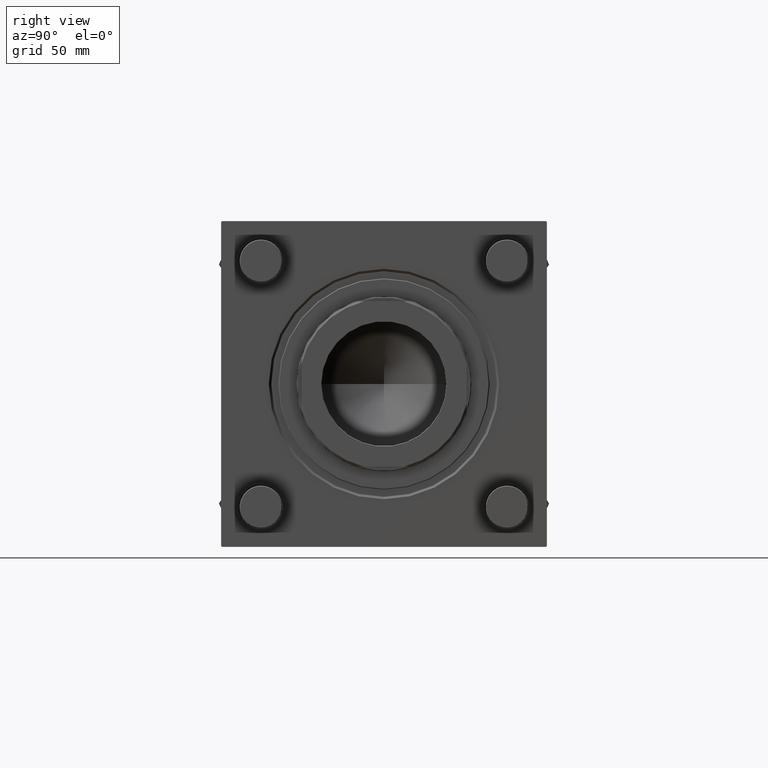
[diagram: clean part render]
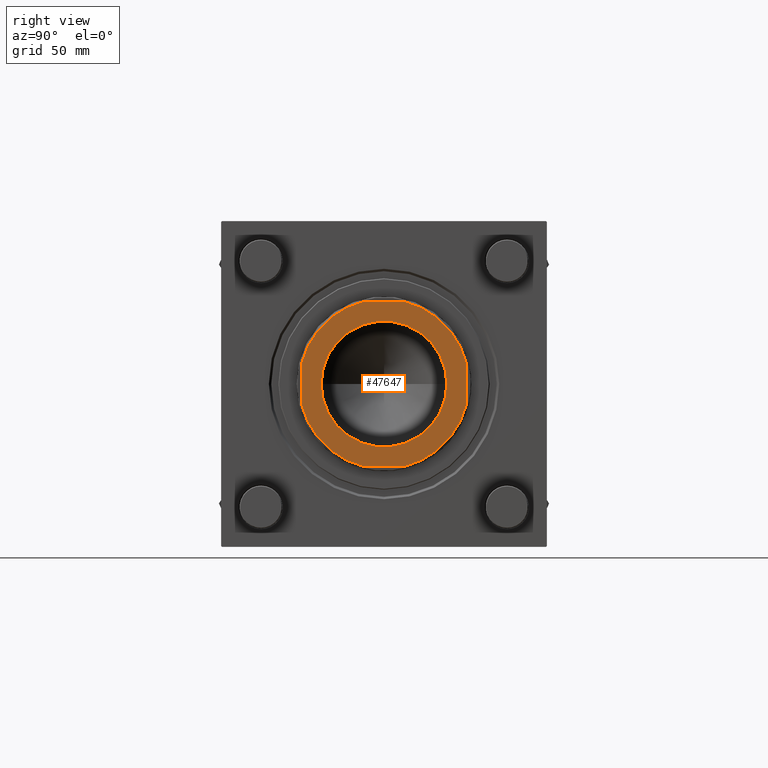
[diagram: same view with one face highlighted and labeled with its STEP entity id]
A machine part, right view. The second image highlights one B-rep face of the part: STEP entity #47647.
In plain terms, the highlighted planar face has unit normal (1, 0, 0).
Its self-contained STEP definition (entity closure, byte-faithful):
#254 = DIRECTION ( 'NONE',  ( 1.000000000000000000, 0.000000000000000000, 0.000000000000000000 ) ) ;
#1326 = EDGE_LOOP ( 'NONE', ( #23546, #53048, #22571, #16310, #34971, #38256, #53480, #41750 ) ) ;
#1582 = CARTESIAN_POINT ( 'NONE',  ( -51.99999999999998579, 12.57974562540899832, 205.0000000000000000 ) ) ;
#3759 = CARTESIAN_POINT ( 'NONE',  ( 52.00000000000001421, -12.57974562540856844, 205.0000000000000000 ) ) ;
#4873 = DIRECTION ( 'NONE',  ( -0.000000000000000000, 0.000000000000000000, 1.000000000000000000 ) ) ;
#5455 = DIRECTION ( 'NONE',  ( -0.000000000000000000, 0.000000000000000000, 1.000000000000000000 ) ) ;
#5755 = DIRECTION ( 'NONE',  ( -0.000000000000000000, 0.000000000000000000, 1.000000000000000000 ) ) ;
#6062 = EDGE_CURVE ( 'NONE', #55857, #54832, #6742, .T. ) ;
#6742 = CIRCLE ( 'NONE', #26196, 39.54999999999997584 ) ;
#7811 = AXIS2_PLACEMENT_3D ( 'NONE', #49250, #22027, #40562 ) ;
#7838 = FACE_BOUND ( 'NONE', #24317, .T. ) ;
#9023 = ORIENTED_EDGE ( 'NONE', *, *, #11015, .T. ) ;
#10113 = DIRECTION ( 'NONE',  ( 1.000000000000000000, 0.000000000000000000, 0.000000000000000000 ) ) ;
#10371 = CARTESIAN_POINT ( 'NONE',  ( 0.000000000000000000, 0.000000000000000000, 205.0000000000000000 ) ) ;
#11015 = EDGE_CURVE ( 'NONE', #54832, #55857, #28169, .T. ) ;
#11083 = VERTEX_POINT ( 'NONE', #32154 ) ;
#11611 = CARTESIAN_POINT ( 'NONE',  ( 0.000000000000000000, 0.000000000000000000, 205.0000000000000000 ) ) ;
#11889 = DIRECTION ( 'NONE',  ( 1.000000000000000000, 0.000000000000000000, 0.000000000000000000 ) ) ;
#12790 = EDGE_CURVE ( 'NONE', #14841, #41920, #29947, .T. ) ;
#12959 = VERTEX_POINT ( 'NONE', #25121 ) ;
#13369 = VERTEX_POINT ( 'NONE', #49507 ) ;
#14224 = AXIS2_PLACEMENT_3D ( 'NONE', #16553, #39939, #254 ) ;
#14841 = VERTEX_POINT ( 'NONE', #14947 ) ;
#14947 = CARTESIAN_POINT ( 'NONE',  ( -12.57974562540890062, 52.00000000000001421, 205.0000000000000000 ) ) ;
#15693 = DIRECTION ( 'NONE',  ( -1.000000000000000000, -0.000000000000000000, -0.000000000000000000 ) ) ;
#16244 = DIRECTION ( 'NONE',  ( -0.000000000000000000, 0.000000000000000000, 1.000000000000000000 ) ) ;
#16310 = ORIENTED_EDGE ( 'NONE', *, *, #12790, .T. ) ;
#16553 = CARTESIAN_POINT ( 'NONE',  ( 0.000000000000000000, 0.000000000000000000, 205.0000000000000000 ) ) ;
#16923 = EDGE_CURVE ( 'NONE', #41920, #11083, #18466, .T. ) ;
#17907 = CARTESIAN_POINT ( 'NONE',  ( 0.000000000000000000, 0.000000000000000000, 205.0000000000000000 ) ) ;
#18466 = LINE ( 'NONE', #22819, #24672 ) ;
#19349 = CARTESIAN_POINT ( 'NONE',  ( 0.000000000000000000, 0.000000000000000000, 205.0000000000000000 ) ) ;
#20444 = VERTEX_POINT ( 'NONE', #45852 ) ;
#21490 = CARTESIAN_POINT ( 'NONE',  ( -51.99999999999997868, -51.99999999999999289, 205.0000000000000000 ) ) ;
#21670 = VERTEX_POINT ( 'NONE', #43476 ) ;
#21914 = CARTESIAN_POINT ( 'NONE',  ( 52.00000000000001421, 52.00000000000001421, 205.0000000000000000 ) ) ;
#22027 = DIRECTION ( 'NONE',  ( 0.000000000000000000, -0.000000000000000000, -1.000000000000000000 ) ) ;
#22571 = ORIENTED_EDGE ( 'NONE', *, *, #56982, .T. ) ;
#22819 = CARTESIAN_POINT ( 'NONE',  ( -51.99999999999999289, 52.00000000000001421, 205.0000000000000000 ) ) ;
#22880 = EDGE_CURVE ( 'NONE', #11083, #21670, #43077, .T. ) ;
#23102 = DIRECTION ( 'NONE',  ( 1.334402673828313093E-16, -1.000000000000000000, 0.000000000000000000 ) ) ;
#23546 = ORIENTED_EDGE ( 'NONE', *, *, #49487, .T. ) ;
#24317 = EDGE_LOOP ( 'NONE', ( #9023, #25621 ) ) ;
#24672 = VECTOR ( 'NONE', #23102, 1000.000000000000000 ) ;
#25121 = CARTESIAN_POINT ( 'NONE',  ( 52.00000000000001421, 12.57974562540872654, 205.0000000000000000 ) ) ;
#25621 = ORIENTED_EDGE ( 'NONE', *, *, #6062, .T. ) ;
#26196 = AXIS2_PLACEMENT_3D ( 'NONE', #37638, #28082, #10113 ) ;
#26472 = EDGE_CURVE ( 'NONE', #21670, #20444, #29619, .T. ) ;
#28082 = DIRECTION ( 'NONE',  ( 0.000000000000000000, -0.000000000000000000, -1.000000000000000000 ) ) ;
#28169 = CIRCLE ( 'NONE', #7811, 39.54999999999997584 ) ;
#29619 = LINE ( 'NONE', #21490, #45067 ) ;
#29947 = CIRCLE ( 'NONE', #14224, 53.49999999999995737 ) ;
#30881 = CARTESIAN_POINT ( 'NONE',  ( -39.54999999999997584, 4.843478090627778580E-15, 205.0000000000000000 ) ) ;
#32154 = CARTESIAN_POINT ( 'NONE',  ( -51.99999999999998579, -12.57974562540868213, 205.0000000000000000 ) ) ;
#33273 = EDGE_CURVE ( 'NONE', #12959, #13369, #38643, .T. ) ;
#34368 = VECTOR ( 'NONE', #56650, 1000.000000000000000 ) ;
#34971 = ORIENTED_EDGE ( 'NONE', *, *, #16923, .T. ) ;
#35599 = DIRECTION ( 'NONE',  ( 1.000000000000000000, 0.000000000000000000, 0.000000000000000000 ) ) ;
#36326 = CIRCLE ( 'NONE', #38171, 53.49999999999987921 ) ;
#37324 = DIRECTION ( 'NONE',  ( 1.000000000000000000, 0.000000000000000000, 0.000000000000000000 ) ) ;
#37638 = CARTESIAN_POINT ( 'NONE',  ( 0.000000000000000000, 0.000000000000000000, 205.0000000000000000 ) ) ;
#37984 = PLANE ( 'NONE',  #55674 ) ;
#38128 = VERTEX_POINT ( 'NONE', #3759 ) ;
#38171 = AXIS2_PLACEMENT_3D ( 'NONE', #10371, #5755, #37324 ) ;
#38256 = ORIENTED_EDGE ( 'NONE', *, *, #22880, .T. ) ;
#38643 = CIRCLE ( 'NONE', #40507, 53.49999999999991473 ) ;
#39939 = DIRECTION ( 'NONE',  ( -0.000000000000000000, 0.000000000000000000, 1.000000000000000000 ) ) ;
#40507 = AXIS2_PLACEMENT_3D ( 'NONE', #19349, #5455, #41099 ) ;
#40562 = DIRECTION ( 'NONE',  ( 1.000000000000000000, 0.000000000000000000, 0.000000000000000000 ) ) ;
#41099 = DIRECTION ( 'NONE',  ( 1.000000000000000000, 0.000000000000000000, 0.000000000000000000 ) ) ;
#41750 = ORIENTED_EDGE ( 'NONE', *, *, #52680, .T. ) ;
#41920 = VERTEX_POINT ( 'NONE', #1582 ) ;
#42643 = LINE ( 'NONE', #47556, #45565 ) ;
#43077 = CIRCLE ( 'NONE', #54144, 53.49999999999987921 ) ;
#43476 = CARTESIAN_POINT ( 'NONE',  ( -12.57974562540865904, -51.99999999999999289, 205.0000000000000000 ) ) ;
#45067 = VECTOR ( 'NONE', #47575, 1000.000000000000000 ) ;
#45565 = VECTOR ( 'NONE', #15693, 1000.000000000000000 ) ;
#45852 = CARTESIAN_POINT ( 'NONE',  ( 12.57974562540865726, -51.99999999999999289, 205.0000000000000000 ) ) ;
#47556 = CARTESIAN_POINT ( 'NONE',  ( -51.99999999999999289, 52.00000000000001421, 205.0000000000000000 ) ) ;
#47575 = DIRECTION ( 'NONE',  ( 1.000000000000000000, 0.000000000000000000, 0.000000000000000000 ) ) ;
#47647 = ADVANCED_FACE ( 'NONE', ( #7838, #51589 ), #37984, .T. ) ;
#49250 = CARTESIAN_POINT ( 'NONE',  ( 0.000000000000000000, 0.000000000000000000, 205.0000000000000000 ) ) ;
#49487 = EDGE_CURVE ( 'NONE', #38128, #12959, #52896, .T. ) ;
#49507 = CARTESIAN_POINT ( 'NONE',  ( 12.57974562540872832, 52.00000000000001421, 205.0000000000000000 ) ) ;
#51210 = CARTESIAN_POINT ( 'NONE',  ( 39.54999999999997584, 0.000000000000000000, 205.0000000000000000 ) ) ;
#51589 = FACE_OUTER_BOUND ( 'NONE', #1326, .T. ) ;
#52680 = EDGE_CURVE ( 'NONE', #20444, #38128, #36326, .T. ) ;
#52896 = LINE ( 'NONE', #21914, #34368 ) ;
#53048 = ORIENTED_EDGE ( 'NONE', *, *, #33273, .T. ) ;
#53480 = ORIENTED_EDGE ( 'NONE', *, *, #26472, .T. ) ;
#54144 = AXIS2_PLACEMENT_3D ( 'NONE', #17907, #4873, #35599 ) ;
#54832 = VERTEX_POINT ( 'NONE', #51210 ) ;
#55674 = AXIS2_PLACEMENT_3D ( 'NONE', #11611, #16244, #11889 ) ;
#55857 = VERTEX_POINT ( 'NONE', #30881 ) ;
#56650 = DIRECTION ( 'NONE',  ( -0.000000000000000000, 1.000000000000000000, -0.000000000000000000 ) ) ;
#56982 = EDGE_CURVE ( 'NONE', #13369, #14841, #42643, .T. ) ;